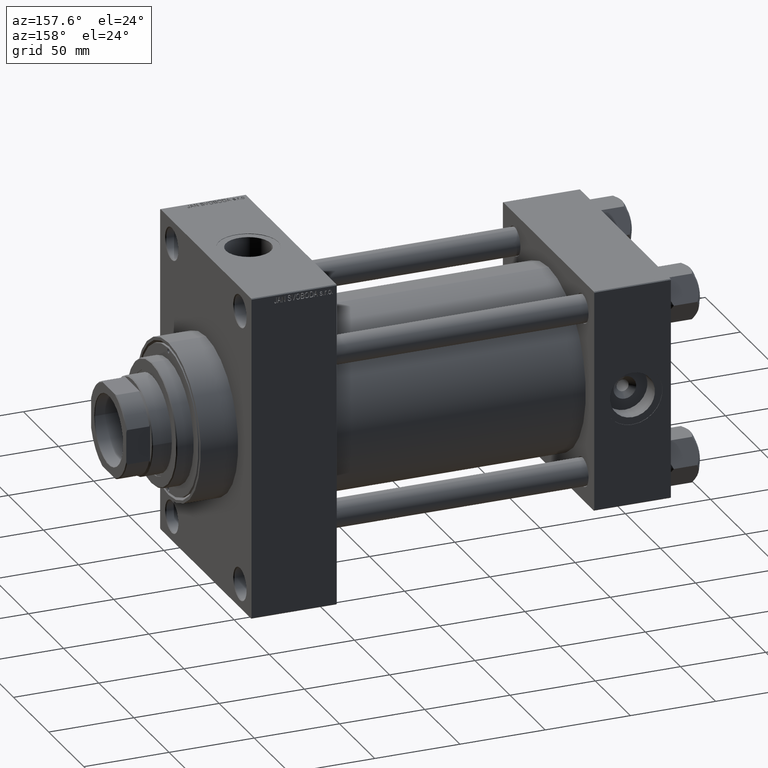
[diagram: clean part render]
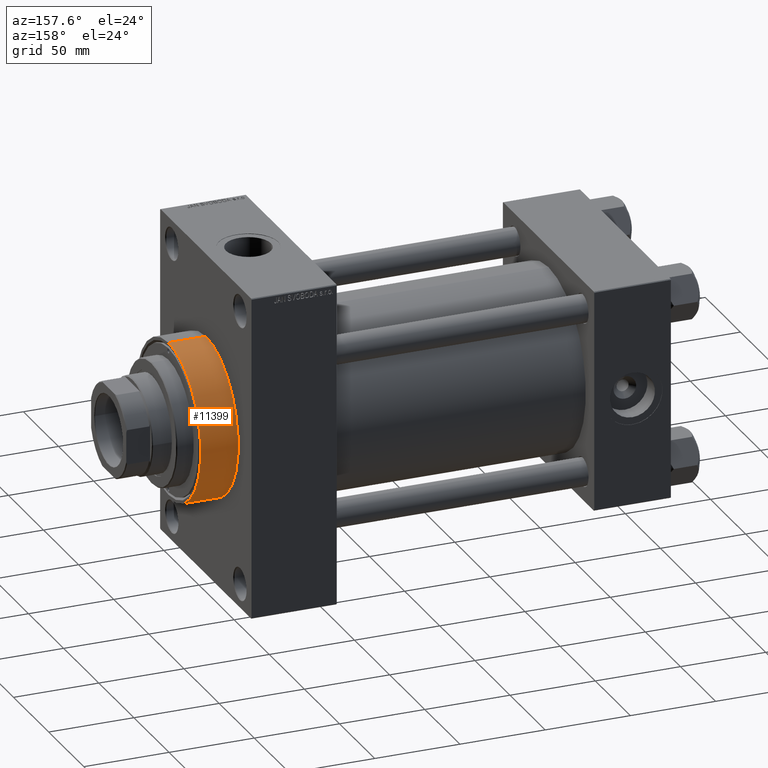
[diagram: same view with one face highlighted and labeled with its STEP entity id]
A machine part, auxiliary view. The second image highlights one B-rep face of the part: STEP entity #11399.
In plain terms, the highlighted cylindrical surface (partial cylindrical patch) has radius 46 mm, axis along (-1, -0, -0).
Its self-contained STEP definition (entity closure, byte-faithful):
#761 = LINE ( 'NONE', #19426, #28484 ) ;
#762 = DIRECTION ( 'NONE',  ( 0.000000000000000000, 0.000000000000000000, -1.000000000000000000 ) ) ;
#2983 = VERTEX_POINT ( 'NONE', #31418 ) ;
#4874 = FACE_OUTER_BOUND ( 'NONE', #26734, .T. ) ;
#5504 = CARTESIAN_POINT ( 'NONE',  ( 268.0000000000000000, 5.633375276077824704E-15, -46.00000000000000000 ) ) ;
#5726 = CARTESIAN_POINT ( 'NONE',  ( 246.0000000000000000, 0.000000000000000000, 46.00000000000000000 ) ) ;
#6215 = VERTEX_POINT ( 'NONE', #36329 ) ;
#9204 = DIRECTION ( 'NONE',  ( 0.000000000000000000, 0.000000000000000000, -1.000000000000000000 ) ) ;
#9301 = EDGE_CURVE ( 'NONE', #6215, #27165, #28492, .T. ) ;
#11399 = ADVANCED_FACE ( 'NONE', ( #4874 ), #45608, .T. ) ;
#13072 = AXIS2_PLACEMENT_3D ( 'NONE', #13821, #39782, #16968 ) ;
#13263 = LINE ( 'NONE', #5504, #20463 ) ;
#13821 = CARTESIAN_POINT ( 'NONE',  ( 268.0000000000000000, 0.000000000000000000, 0.000000000000000000 ) ) ;
#15540 = DIRECTION ( 'NONE',  ( 1.000000000000000000, 0.000000000000000000, 0.000000000000000000 ) ) ;
#16419 = DIRECTION ( 'NONE',  ( -1.000000000000000000, -0.000000000000000000, -0.000000000000000000 ) ) ;
#16968 = DIRECTION ( 'NONE',  ( 0.000000000000000000, 0.000000000000000000, 1.000000000000000000 ) ) ;
#17932 = EDGE_CURVE ( 'NONE', #46295, #27165, #761, .T. ) ;
#19426 = CARTESIAN_POINT ( 'NONE',  ( 268.0000000000000000, 0.000000000000000000, 46.00000000000000000 ) ) ;
#20413 = ORIENTED_EDGE ( 'NONE', *, *, #9301, .T. ) ;
#20463 = VECTOR ( 'NONE', #16419, 1000.000000000000000 ) ;
#21853 = CIRCLE ( 'NONE', #40462, 46.00000000000000000 ) ;
#22587 = CARTESIAN_POINT ( 'NONE',  ( 268.0000000000000000, 0.000000000000000000, 0.000000000000000000 ) ) ;
#22591 = CARTESIAN_POINT ( 'NONE',  ( 268.0000000000000000, 0.000000000000000000, 46.00000000000000000 ) ) ;
#26734 = EDGE_LOOP ( 'NONE', ( #37171, #28485, #20413, #38007 ) ) ;
#26750 = DIRECTION ( 'NONE',  ( 1.000000000000000000, 0.000000000000000000, 0.000000000000000000 ) ) ;
#27165 = VERTEX_POINT ( 'NONE', #5726 ) ;
#28484 = VECTOR ( 'NONE', #42231, 1000.000000000000000 ) ;
#28485 = ORIENTED_EDGE ( 'NONE', *, *, #36709, .T. ) ;
#28492 = CIRCLE ( 'NONE', #36247, 46.00000000000000000 ) ;
#30624 = CARTESIAN_POINT ( 'NONE',  ( 246.0000000000000000, 0.000000000000000000, 0.000000000000000000 ) ) ;
#31418 = CARTESIAN_POINT ( 'NONE',  ( 268.0000000000000000, 5.633375276077824704E-15, -46.00000000000000000 ) ) ;
#32485 = EDGE_CURVE ( 'NONE', #2983, #46295, #21853, .T. ) ;
#36247 = AXIS2_PLACEMENT_3D ( 'NONE', #30624, #26750, #9204 ) ;
#36329 = CARTESIAN_POINT ( 'NONE',  ( 246.0000000000000000, 5.633375276077824704E-15, -46.00000000000000000 ) ) ;
#36709 = EDGE_CURVE ( 'NONE', #2983, #6215, #13263, .T. ) ;
#37171 = ORIENTED_EDGE ( 'NONE', *, *, #32485, .F. ) ;
#38007 = ORIENTED_EDGE ( 'NONE', *, *, #17932, .F. ) ;
#39782 = DIRECTION ( 'NONE',  ( -1.000000000000000000, -0.000000000000000000, -0.000000000000000000 ) ) ;
#40462 = AXIS2_PLACEMENT_3D ( 'NONE', #22587, #15540, #762 ) ;
#42231 = DIRECTION ( 'NONE',  ( -1.000000000000000000, -0.000000000000000000, -0.000000000000000000 ) ) ;
#45608 = CYLINDRICAL_SURFACE ( 'NONE', #13072, 46.00000000000000000 ) ;
#46295 = VERTEX_POINT ( 'NONE', #22591 ) ;